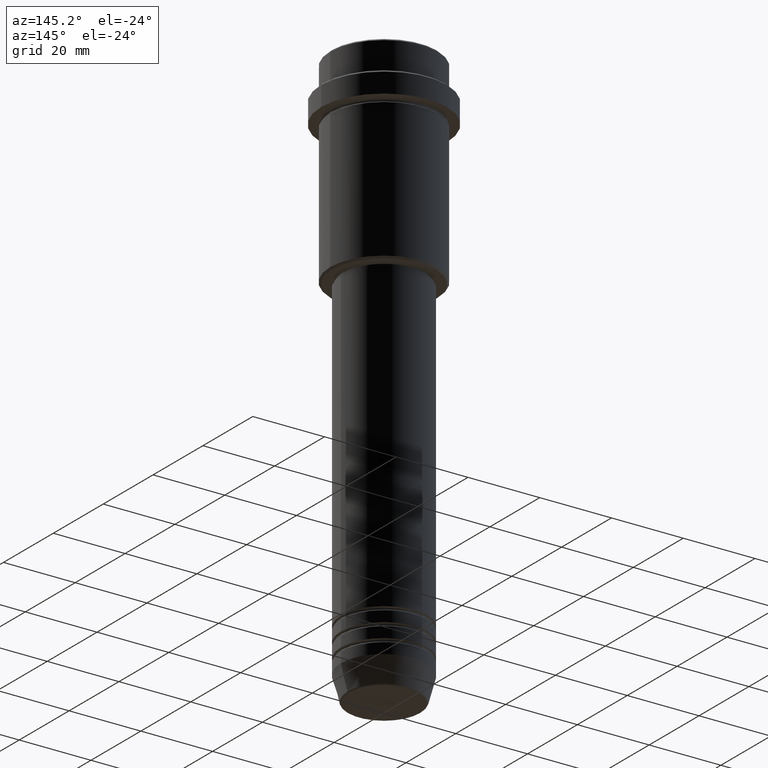
[diagram: clean part render]
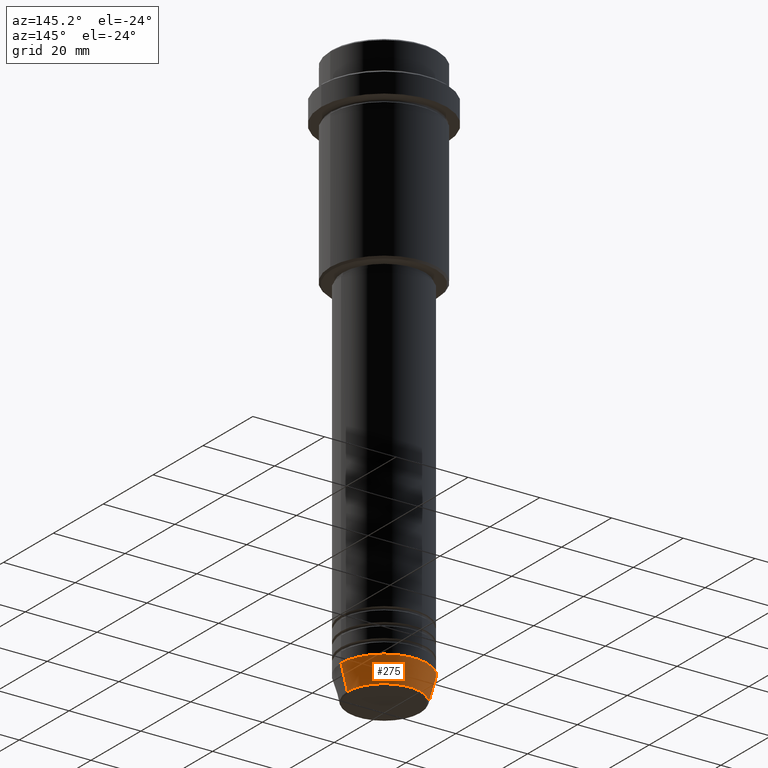
[diagram: same view with one face highlighted and labeled with its STEP entity id]
A machine part, auxiliary view. The second image highlights one B-rep face of the part: STEP entity #275.
In plain terms, the highlighted conical surface has half-angle 15 deg.
Its self-contained STEP definition (entity closure, byte-faithful):
#45 = EDGE_CURVE ( 'NONE', #335, #226, #755, .T. ) ;
#100 = CONICAL_SURFACE ( 'NONE', #1230, 12.00000000000000000, 0.2617993877991500740 ) ;
#122 = AXIS2_PLACEMENT_3D ( 'NONE', #1120, #1171, #1372 ) ;
#200 = FACE_OUTER_BOUND ( 'NONE', #213, .T. ) ;
#213 = EDGE_LOOP ( 'NONE', ( #472, #1073, #1041, #894 ) ) ;
#221 = CARTESIAN_POINT ( 'NONE',  ( -12.00000000000000000, 1.469576158976823947E-15, -153.0000000000000000 ) ) ;
#226 = VERTEX_POINT ( 'NONE', #1036 ) ;
#275 = ADVANCED_FACE ( 'NONE', ( #200 ), #100, .T. ) ;
#317 = AXIS2_PLACEMENT_3D ( 'NONE', #490, #820, #1378 ) ;
#334 = EDGE_CURVE ( 'NONE', #335, #1253, #1274, .T. ) ;
#335 = VERTEX_POINT ( 'NONE', #1267 ) ;
#341 = CIRCLE ( 'NONE', #122, 12.00000000000000000 ) ;
#454 = VECTOR ( 'NONE', #1050, 1000.000000000000000 ) ;
#472 = ORIENTED_EDGE ( 'NONE', *, *, #45, .T. ) ;
#490 = CARTESIAN_POINT ( 'NONE',  ( 0.000000000000000000, 0.000000000000000000, -159.6294095225512422 ) ) ;
#529 = EDGE_CURVE ( 'NONE', #1253, #1338, #341, .T. ) ;
#663 = EDGE_CURVE ( 'NONE', #226, #1338, #990, .T. ) ;
#735 = CARTESIAN_POINT ( 'NONE',  ( 12.00000000000000000, 0.000000000000000000, -153.0000000000000000 ) ) ;
#755 = CIRCLE ( 'NONE', #317, 10.22365507213719660 ) ;
#798 = CARTESIAN_POINT ( 'NONE',  ( -12.00000000000000000, 1.469576158976823947E-15, -153.0000000000000000 ) ) ;
#820 = DIRECTION ( 'NONE',  ( -0.000000000000000000, -0.000000000000000000, 1.000000000000000000 ) ) ;
#894 = ORIENTED_EDGE ( 'NONE', *, *, #334, .F. ) ;
#949 = DIRECTION ( 'NONE',  ( -0.000000000000000000, -0.000000000000000000, 1.000000000000000000 ) ) ;
#975 = CARTESIAN_POINT ( 'NONE',  ( 0.000000000000000000, 0.000000000000000000, -153.0000000000000000 ) ) ;
#990 = LINE ( 'NONE', #221, #1413 ) ;
#1036 = CARTESIAN_POINT ( 'NONE',  ( -10.22365507213719837, 1.360806402472383336E-15, -159.6294095225512422 ) ) ;
#1041 = ORIENTED_EDGE ( 'NONE', *, *, #529, .F. ) ;
#1050 = DIRECTION ( 'NONE',  ( 0.2588190451025213501, 0.000000000000000000, 0.9659258262890680902 ) ) ;
#1073 = ORIENTED_EDGE ( 'NONE', *, *, #663, .T. ) ;
#1120 = CARTESIAN_POINT ( 'NONE',  ( 0.000000000000000000, 0.000000000000000000, -153.0000000000000000 ) ) ;
#1171 = DIRECTION ( 'NONE',  ( -0.000000000000000000, -0.000000000000000000, 1.000000000000000000 ) ) ;
#1203 = DIRECTION ( 'NONE',  ( -0.2588190451025213501, 3.169619151431772337E-17, 0.9659258262890680902 ) ) ;
#1230 = AXIS2_PLACEMENT_3D ( 'NONE', #975, #949, #1402 ) ;
#1253 = VERTEX_POINT ( 'NONE', #1292 ) ;
#1267 = CARTESIAN_POINT ( 'NONE',  ( 10.22365507213719660, 0.000000000000000000, -159.6294095225512422 ) ) ;
#1274 = LINE ( 'NONE', #735, #454 ) ;
#1292 = CARTESIAN_POINT ( 'NONE',  ( 12.00000000000000000, 0.000000000000000000, -153.0000000000000000 ) ) ;
#1338 = VERTEX_POINT ( 'NONE', #798 ) ;
#1372 = DIRECTION ( 'NONE',  ( 1.000000000000000000, 0.000000000000000000, 0.000000000000000000 ) ) ;
#1378 = DIRECTION ( 'NONE',  ( 1.000000000000000000, 0.000000000000000000, 0.000000000000000000 ) ) ;
#1402 = DIRECTION ( 'NONE',  ( 1.000000000000000000, 0.000000000000000000, 0.000000000000000000 ) ) ;
#1413 = VECTOR ( 'NONE', #1203, 1000.000000000000000 ) ;